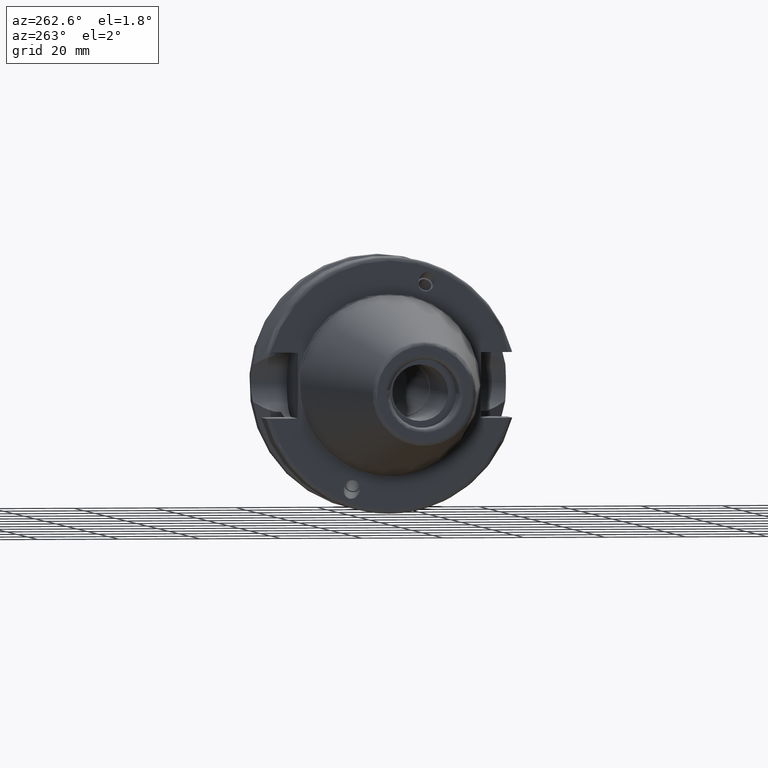
[diagram: clean part render]
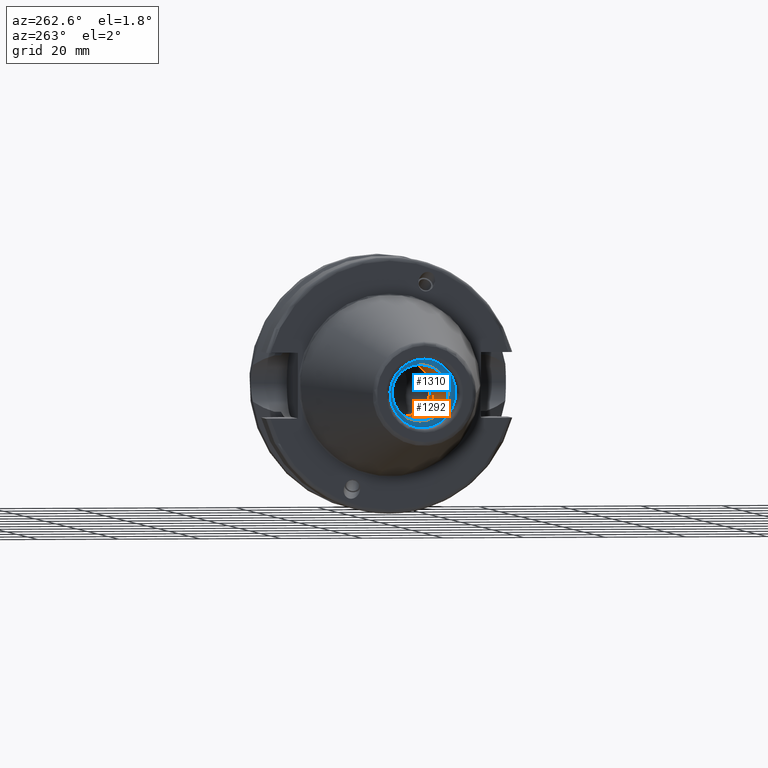
[diagram: same view with the hole feature highlighted: cylindrical wall and planar end face, labeled with their STEP entity ids]
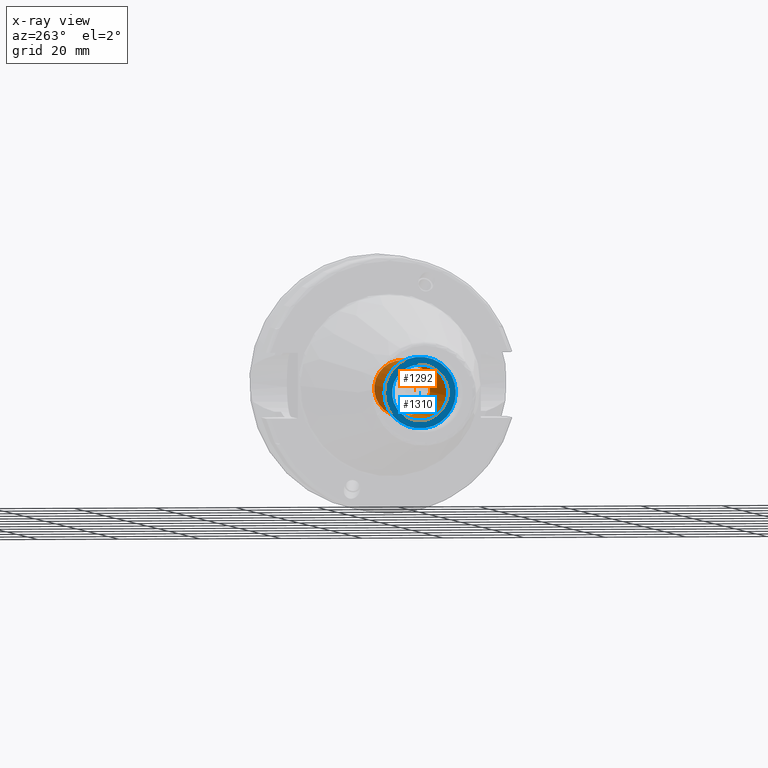
[diagram: x-ray of the same camera — body ghosted, the hole faces saturated]
A machine part, auxiliary view. The highlighted faces form one hole feature of diameter 13.835 mm: the cylindrical wall (entity #1292, orange) and its adjacent planar end face (entity #1310, blue) — they share a circular edge in the B-rep.
The next image is the same camera in x-ray (body ghosted, the hole faces saturated) — the bore reads through the body.
Wall:
#113=CYLINDRICAL_SURFACE('',#1451,6.9175);
#180=FACE_OUTER_BOUND('',#270,.T.);
#270=EDGE_LOOP('',(#1028,#1029,#1030,#1031));
#351=CIRCLE('',#1450,6.9175);
#352=CIRCLE('',#1452,6.9175);
#421=LINE('',#2287,#489);
#489=VECTOR('',#1761,6.9175);
#589=VERTEX_POINT('',#2281);
#590=VERTEX_POINT('',#2285);
#746=EDGE_CURVE('',#589,#589,#351,.T.);
#748=EDGE_CURVE('',#590,#590,#352,.T.);
#749=EDGE_CURVE('',#590,#589,#421,.T.);
#1028=ORIENTED_EDGE('',*,*,#748,.F.);
#1029=ORIENTED_EDGE('',*,*,#749,.T.);
#1030=ORIENTED_EDGE('',*,*,#746,.F.);
#1031=ORIENTED_EDGE('',*,*,#749,.F.);
#1292=ADVANCED_FACE('',(#180),#113,.F.);
#1450=AXIS2_PLACEMENT_3D('',#2282,#1754,#1755);
#1451=AXIS2_PLACEMENT_3D('',#2284,#1757,#1758);
#1452=AXIS2_PLACEMENT_3D('',#2286,#1759,#1760);
#1754=DIRECTION('center_axis',(-1.,0.,0.));
#1755=DIRECTION('ref_axis',(0.,0.,1.));
#1757=DIRECTION('center_axis',(-1.,0.,0.));
#1758=DIRECTION('ref_axis',(0.,0.,1.));
#1759=DIRECTION('center_axis',(1.,0.,0.));
#1760=DIRECTION('ref_axis',(0.,0.,1.));
#1761=DIRECTION('',(1.,0.,0.));
#2281=CARTESIAN_POINT('',(-22.4,-8.47149423310182E-16,-6.9175));
#2282=CARTESIAN_POINT('Origin',(-22.4,0.,0.));
#2284=CARTESIAN_POINT('Origin',(-43.9,0.,0.));
#2285=CARTESIAN_POINT('',(-56.4,8.47149423310182E-16,-6.9175));
#2286=CARTESIAN_POINT('Origin',(-56.4,0.,0.));
#2287=CARTESIAN_POINT('',(-43.9,-8.47149423310182E-16,-6.9175));
End face:
#58=FACE_BOUND('',#290,.T.);
#198=FACE_OUTER_BOUND('',#289,.T.);
#289=EDGE_LOOP('',(#1138));
#290=EDGE_LOOP('',(#1139));
#352=CIRCLE('',#1452,6.9175);
#367=CIRCLE('',#1485,8.8);
#590=VERTEX_POINT('',#2285);
#638=VERTEX_POINT('',#2520);
#748=EDGE_CURVE('',#590,#590,#352,.T.);
#814=EDGE_CURVE('',#638,#638,#367,.T.);
#1138=ORIENTED_EDGE('',*,*,#814,.F.);
#1139=ORIENTED_EDGE('',*,*,#748,.T.);
#1246=PLANE('',#1484);
#1310=ADVANCED_FACE('',(#198,#58),#1246,.T.);
#1452=AXIS2_PLACEMENT_3D('',#2286,#1759,#1760);
#1484=AXIS2_PLACEMENT_3D('',#2519,#1855,#1856);
#1485=AXIS2_PLACEMENT_3D('',#2521,#1857,#1858);
#1759=DIRECTION('center_axis',(1.,0.,0.));
#1760=DIRECTION('ref_axis',(0.,0.,1.));
#1855=DIRECTION('center_axis',(-1.,0.,0.));
#1856=DIRECTION('ref_axis',(0.,0.,1.));
#1857=DIRECTION('center_axis',(1.,0.,0.));
#1858=DIRECTION('ref_axis',(0.,0.,-1.));
#2285=CARTESIAN_POINT('',(-56.4,8.47149423310182E-16,-6.9175));
#2286=CARTESIAN_POINT('Origin',(-56.4,0.,0.));
#2519=CARTESIAN_POINT('Origin',(-56.4,8.8,0.));
#2520=CARTESIAN_POINT('',(-56.4,-8.8,-1.07768918324967E-15));
#2521=CARTESIAN_POINT('Origin',(-56.4,0.,0.));